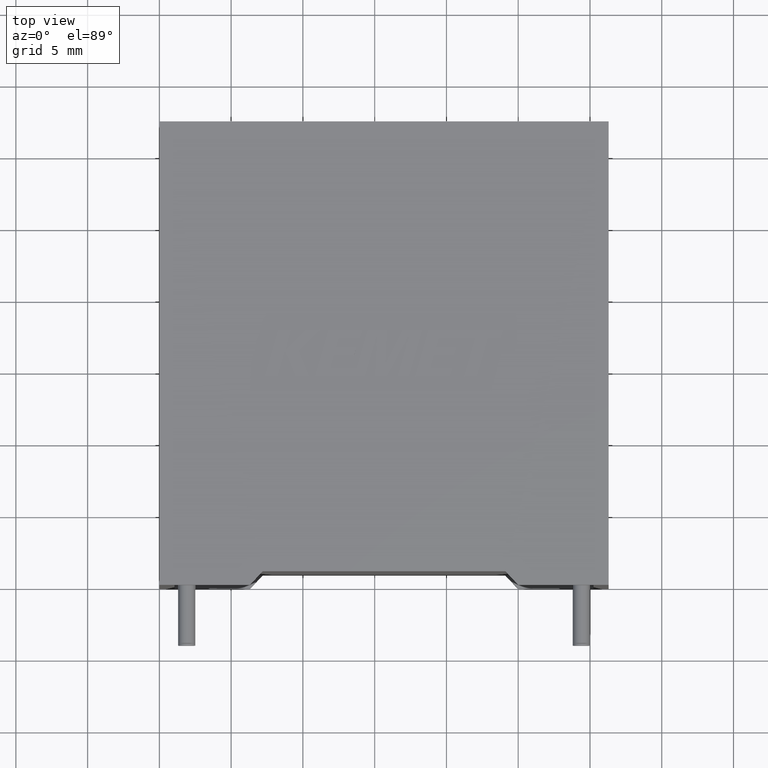
[diagram: clean part render]
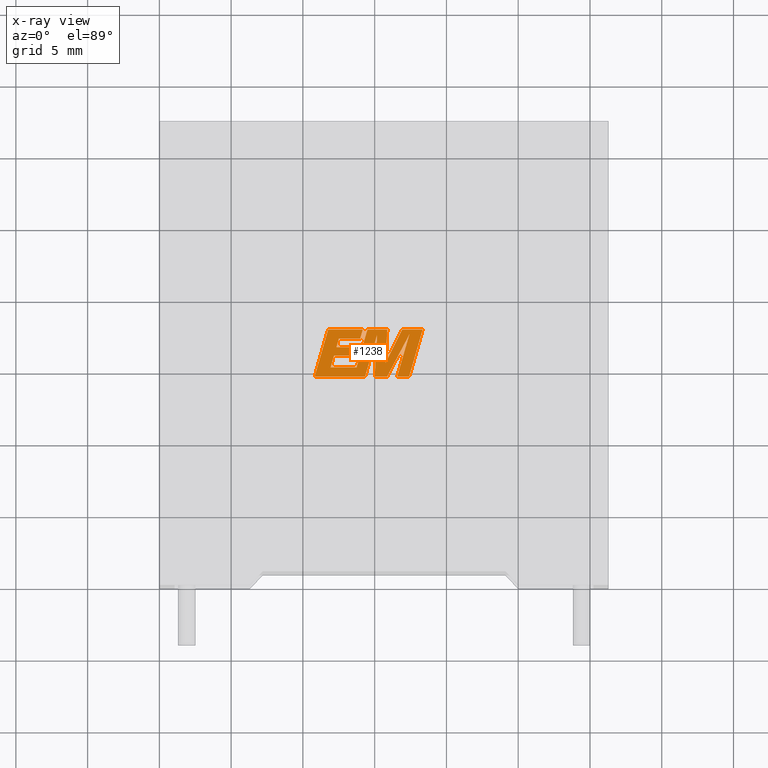
[diagram: x-ray — body ghosted, one internal face saturated and labeled with its STEP entity id]
A machine part, top view, then the same camera in x-ray: the body is ghosted and one INTERNAL B-rep face — a face not visible from any outside direction — is saturated and labeled: STEP entity #1238.
In plain terms, the highlighted planar face has unit normal (0, 0, -1).
Its self-contained STEP definition (entity closure, byte-faithful):
#12 = DIRECTION ( 'NONE',  ( -1.000000000000000000, 0.000000000000000000, 0.000000000000000000 ) ) ;
#141 = CARTESIAN_POINT ( 'NONE',  ( 11.76136659402189011, 17.78428215128295165, 17.30000000000000071 ) ) ;
#147 = LINE ( 'NONE', #3102, #2332 ) ;
#148 = ORIENTED_EDGE ( 'NONE', *, *, #1062, .F. ) ;
#151 = VECTOR ( 'NONE', #1303, 1000.000000000000000 ) ;
#160 = CARTESIAN_POINT ( 'NONE',  ( 14.16898600366057792, 17.78428215128295165, 17.30000000000000071 ) ) ;
#193 = CARTESIAN_POINT ( 'NONE',  ( 11.76136659402189011, 17.78428215128295165, 17.30000000000000071 ) ) ;
#198 = ORIENTED_EDGE ( 'NONE', *, *, #611, .F. ) ;
#209 = EDGE_CURVE ( 'NONE', #1289, #1083, #3087, .T. ) ;
#244 = EDGE_LOOP ( 'NONE', ( #2851, #1325, #1764, #774, #2611, #2180, #1305, #1129, #148, #862, #2558, #1637, #198, #2523, #1270, #343, #1658, #1252, #2404, #495, #1306, #1730, #534 ) ) ;
#304 = CARTESIAN_POINT ( 'NONE',  ( 15.16755047905505371, 17.42668724483645448, 17.30000000000000071 ) ) ;
#330 = DIRECTION ( 'NONE',  ( -0.2760118818968583243, -0.9611542233438683525, 0.000000000000000000 ) ) ;
#343 = ORIENTED_EDGE ( 'NONE', *, *, #460, .F. ) ;
#356 = CARTESIAN_POINT ( 'NONE',  ( 13.55829908329610589, 15.95531307451581249, 17.30000000000000071 ) ) ;
#360 = VECTOR ( 'NONE', #2335, 1000.000000000000227 ) ;
#371 = LINE ( 'NONE', #356, #700 ) ;
#450 = VECTOR ( 'NONE', #3081, 1000.000000000000227 ) ;
#452 = VECTOR ( 'NONE', #1266, 1000.000000000000000 ) ;
#460 = EDGE_CURVE ( 'NONE', #1298, #1931, #371, .T. ) ;
#461 = VECTOR ( 'NONE', #2625, 1000.000000000000227 ) ;
#495 = ORIENTED_EDGE ( 'NONE', *, *, #3139, .F. ) ;
#502 = VECTOR ( 'NONE', #2979, 1000.000000000000000 ) ;
#534 = ORIENTED_EDGE ( 'NONE', *, *, #778, .F. ) ;
#544 = EDGE_CURVE ( 'NONE', #1737, #1140, #856, .T. ) ;
#562 = VECTOR ( 'NONE', #1394, 1000.000000000000000 ) ;
#573 = VECTOR ( 'NONE', #2205, 1000.000000000000000 ) ;
#579 = DIRECTION ( 'NONE',  ( 0.05375259206908569037, 0.9985542843760946141, 0.000000000000000000 ) ) ;
#611 = EDGE_CURVE ( 'NONE', #1083, #2290, #812, .T. ) ;
#615 = CARTESIAN_POINT ( 'NONE',  ( 12.33159406905216038, 16.55778523117215073, 17.30000000000000071 ) ) ;
#620 = DIRECTION ( 'NONE',  ( 0.4668459304955231426, 0.8843386665637600341, 0.000000000000000000 ) ) ;
#639 = EDGE_CURVE ( 'NONE', #1140, #1622, #1274, .T. ) ;
#669 = CARTESIAN_POINT ( 'NONE',  ( 14.49404886040156804, 17.78428215128295165, 17.30000000000000071 ) ) ;
#694 = LINE ( 'NONE', #193, #1224 ) ;
#700 = VECTOR ( 'NONE', #3012, 1000.000000000000114 ) ;
#702 = VERTEX_POINT ( 'NONE', #2142 ) ;
#708 = PLANE ( 'NONE',  #1180 ) ;
#742 = VERTEX_POINT ( 'NONE', #2643 ) ;
#747 = CARTESIAN_POINT ( 'NONE',  ( 13.99279963635794566, 17.16395353602815277, 17.30000000000000071 ) ) ;
#774 = ORIENTED_EDGE ( 'NONE', *, *, #639, .F. ) ;
#778 = EDGE_CURVE ( 'NONE', #1432, #742, #1155, .T. ) ;
#780 = DIRECTION ( 'NONE',  ( 1.000000000000000000, 0.000000000000000000, 0.000000000000000000 ) ) ;
#782 = CARTESIAN_POINT ( 'NONE',  ( 15.00491995823857039, 14.52530999999990513, 17.30000000000000071 ) ) ;
#798 = CARTESIAN_POINT ( 'NONE',  ( 13.73551601201744887, 15.14533142868118887, 17.30000000000000071 ) ) ;
#812 = LINE ( 'NONE', #1018, #2296 ) ;
#815 = DIRECTION ( 'NONE',  ( -0.05596501978068446626, -0.9984327301130244692, 0.000000000000000000 ) ) ;
#823 = EDGE_CURVE ( 'NONE', #1870, #1045, #2200, .T. ) ;
#856 = LINE ( 'NONE', #2793, #2872 ) ;
#862 = ORIENTED_EDGE ( 'NONE', *, *, #1211, .F. ) ;
#935 = VERTEX_POINT ( 'NONE', #669 ) ;
#953 = EDGE_CURVE ( 'NONE', #1931, #1289, #1657, .T. ) ;
#975 = DIRECTION ( 'NONE',  ( 1.000000000000000000, 0.000000000000000000, 0.000000000000000000 ) ) ;
#979 = LINE ( 'NONE', #3136, #573 ) ;
#1018 = CARTESIAN_POINT ( 'NONE',  ( 12.50797862124455584, 17.16395353602815277, 17.30000000000000071 ) ) ;
#1019 = EDGE_CURVE ( 'NONE', #1969, #2052, #1937, .T. ) ;
#1021 = CARTESIAN_POINT ( 'NONE',  ( 13.73551601201744887, 15.14533142868118887, 17.30000000000000071 ) ) ;
#1045 = VERTEX_POINT ( 'NONE', #2223 ) ;
#1050 = EDGE_CURVE ( 'NONE', #1739, #935, #2995, .T. ) ;
#1062 = EDGE_CURVE ( 'NONE', #1063, #1969, #2293, .T. ) ;
#1063 = VERTEX_POINT ( 'NONE', #2732 ) ;
#1083 = VERTEX_POINT ( 'NONE', #2042 ) ;
#1116 = CARTESIAN_POINT ( 'NONE',  ( 13.73038302337338834, 16.55778523117215073, 17.30000000000000071 ) ) ;
#1129 = ORIENTED_EDGE ( 'NONE', *, *, #1019, .F. ) ;
#1140 = VERTEX_POINT ( 'NONE', #2589 ) ;
#1154 = VECTOR ( 'NONE', #1758, 1000.000000000000114 ) ;
#1155 = LINE ( 'NONE', #2128, #450 ) ;
#1175 = VECTOR ( 'NONE', #330, 1000.000000000000000 ) ;
#1180 = AXIS2_PLACEMENT_3D ( 'NONE', #2173, #1652, #2618 ) ;
#1193 = DIRECTION ( 'NONE',  ( -0.2765379750249978286, -0.9610029908221272565, 0.000000000000000000 ) ) ;
#1211 = EDGE_CURVE ( 'NONE', #3082, #1063, #694, .T. ) ;
#1224 = VECTOR ( 'NONE', #1193, 1000.000000000000114 ) ;
#1238 = ADVANCED_FACE ( 'NONE', ( #2410 ), #708, .T. ) ;
#1252 = ORIENTED_EDGE ( 'NONE', *, *, #2159, .F. ) ;
#1266 = DIRECTION ( 'NONE',  ( 1.000000000000000000, 0.000000000000000000, 0.000000000000000000 ) ) ;
#1270 = ORIENTED_EDGE ( 'NONE', *, *, #953, .F. ) ;
#1274 = LINE ( 'NONE', #2248, #1175 ) ;
#1289 = VERTEX_POINT ( 'NONE', #615 ) ;
#1297 = EDGE_CURVE ( 'NONE', #1482, #3082, #1813, .T. ) ;
#1298 = VERTEX_POINT ( 'NONE', #2336 ) ;
#1303 = DIRECTION ( 'NONE',  ( 0.2759782365590843778, 0.9611638845408925214, 0.000000000000000000 ) ) ;
#1305 = ORIENTED_EDGE ( 'NONE', *, *, #1882, .F. ) ;
#1306 = ORIENTED_EDGE ( 'NONE', *, *, #1050, .F. ) ;
#1315 = CARTESIAN_POINT ( 'NONE',  ( 15.16755047905505371, 17.42668724483645448, 17.30000000000000071 ) ) ;
#1325 = ORIENTED_EDGE ( 'NONE', *, *, #1474, .F. ) ;
#1330 = LINE ( 'NONE', #1315, #1458 ) ;
#1336 = CARTESIAN_POINT ( 'NONE',  ( 15.87373278870076554, 14.52530999999990513, 17.30000000000000071 ) ) ;
#1360 = DIRECTION ( 'NONE',  ( 0.2793947940878290792, 0.9601763114327594995, 0.000000000000000000 ) ) ;
#1392 = EDGE_CURVE ( 'NONE', #2290, #1482, #2799, .T. ) ;
#1394 = DIRECTION ( 'NONE',  ( -1.000000000000000000, 0.000000000000000000, 0.000000000000000000 ) ) ;
#1432 = VERTEX_POINT ( 'NONE', #1705 ) ;
#1458 = VECTOR ( 'NONE', #815, 1000.000000000000114 ) ;
#1474 = EDGE_CURVE ( 'NONE', #1582, #702, #1484, .T. ) ;
#1482 = VERTEX_POINT ( 'NONE', #1554 ) ;
#1484 = LINE ( 'NONE', #2264, #1154 ) ;
#1507 = LINE ( 'NONE', #2660, #2470 ) ;
#1554 = CARTESIAN_POINT ( 'NONE',  ( 14.16898600366057792, 17.78428215128295165, 17.30000000000000071 ) ) ;
#1574 = CARTESIAN_POINT ( 'NONE',  ( 14.33448029352148723, 14.52530999999990513, 17.30000000000000071 ) ) ;
#1582 = VERTEX_POINT ( 'NONE', #2341 ) ;
#1622 = VERTEX_POINT ( 'NONE', #1950 ) ;
#1637 = ORIENTED_EDGE ( 'NONE', *, *, #1392, .F. ) ;
#1644 = VECTOR ( 'NONE', #579, 1000.000000000000000 ) ;
#1652 = DIRECTION ( 'NONE',  ( 0.000000000000000000, 0.000000000000000000, -1.000000000000000000 ) ) ;
#1657 = LINE ( 'NONE', #1116, #562 ) ;
#1658 = ORIENTED_EDGE ( 'NONE', *, *, #1661, .F. ) ;
#1659 = LINE ( 'NONE', #1860, #461 ) ;
#1661 = EDGE_CURVE ( 'NONE', #2262, #1298, #2190, .T. ) ;
#1701 = CARTESIAN_POINT ( 'NONE',  ( 14.33448029352148723, 14.52530999999990513, 17.30000000000000071 ) ) ;
#1705 = CARTESIAN_POINT ( 'NONE',  ( 16.91133564329762251, 17.78428215128295165, 17.30000000000000071 ) ) ;
#1730 = ORIENTED_EDGE ( 'NONE', *, *, #3030, .F. ) ;
#1737 = VERTEX_POINT ( 'NONE', #1336 ) ;
#1739 = VERTEX_POINT ( 'NONE', #3022 ) ;
#1758 = DIRECTION ( 'NONE',  ( 0.2763139702539144094, 0.9610674221107065041, 0.000000000000000000 ) ) ;
#1764 = ORIENTED_EDGE ( 'NONE', *, *, #2412, .F. ) ;
#1767 = VECTOR ( 'NONE', #2925, 1000.000000000000000 ) ;
#1769 = CARTESIAN_POINT ( 'NONE',  ( 15.88192980133783294, 17.78428215128295165, 17.30000000000000071 ) ) ;
#1794 = LINE ( 'NONE', #2758, #1644 ) ;
#1813 = LINE ( 'NONE', #160, #2395 ) ;
#1819 = CARTESIAN_POINT ( 'NONE',  ( 13.75439312020063198, 14.52530999999990513, 17.30000000000000071 ) ) ;
#1860 = CARTESIAN_POINT ( 'NONE',  ( 14.49404886040156804, 17.78428215128295165, 17.30000000000000071 ) ) ;
#1870 = VERTEX_POINT ( 'NONE', #1021 ) ;
#1875 = VECTOR ( 'NONE', #975, 1000.000000000000000 ) ;
#1882 = EDGE_CURVE ( 'NONE', #2052, #2903, #1330, .T. ) ;
#1931 = VERTEX_POINT ( 'NONE', #1976 ) ;
#1937 = LINE ( 'NONE', #1701, #151 ) ;
#1950 = CARTESIAN_POINT ( 'NONE',  ( 16.57556494000969494, 14.52530999999990868, 17.30000000000000071 ) ) ;
#1960 = DIRECTION ( 'NONE',  ( -1.000000000000000000, 0.000000000000000000, 0.000000000000000000 ) ) ;
#1969 = VERTEX_POINT ( 'NONE', #1574 ) ;
#1976 = CARTESIAN_POINT ( 'NONE',  ( 13.73038302337338834, 16.55778523117215073, 17.30000000000000071 ) ) ;
#2042 = CARTESIAN_POINT ( 'NONE',  ( 12.50797862124455584, 17.16395353602815277, 17.30000000000000071 ) ) ;
#2052 = VERTEX_POINT ( 'NONE', #304 ) ;
#2098 = DIRECTION ( 'NONE',  ( 0.2740217765954296447, 0.9617234872620531450, 0.000000000000000000 ) ) ;
#2128 = CARTESIAN_POINT ( 'NONE',  ( 16.91133564329762251, 17.78428215128295165, 17.30000000000000071 ) ) ;
#2142 = CARTESIAN_POINT ( 'NONE',  ( 18.34069866367918422, 17.78428215128295165, 17.30000000000000071 ) ) ;
#2159 = EDGE_CURVE ( 'NONE', #1045, #2262, #147, .T. ) ;
#2173 = CARTESIAN_POINT ( 'NONE',  ( -0.1104640680447332712, -1.802930519441395596, 17.30000000000000071 ) ) ;
#2180 = ORIENTED_EDGE ( 'NONE', *, *, #2890, .F. ) ;
#2184 = LINE ( 'NONE', #3148, #1875 ) ;
#2185 = VECTOR ( 'NONE', #1960, 1000.000000000000000 ) ;
#2190 = LINE ( 'NONE', #2679, #1767 ) ;
#2200 = LINE ( 'NONE', #798, #2185 ) ;
#2205 = DIRECTION ( 'NONE',  ( 1.000000000000000000, 0.000000000000000000, 0.000000000000000000 ) ) ;
#2223 = CARTESIAN_POINT ( 'NONE',  ( 11.92892200933862590, 15.14533142868118887, 17.30000000000000071 ) ) ;
#2248 = CARTESIAN_POINT ( 'NONE',  ( 17.41275737125616629, 17.44065927958185114, 17.30000000000000071 ) ) ;
#2262 = VERTEX_POINT ( 'NONE', #2451 ) ;
#2264 = CARTESIAN_POINT ( 'NONE',  ( 17.40372014026792158, 14.52530999999990868, 17.30000000000000071 ) ) ;
#2290 = VERTEX_POINT ( 'NONE', #747 ) ;
#2293 = LINE ( 'NONE', #1819, #452 ) ;
#2296 = VECTOR ( 'NONE', #780, 1000.000000000000000 ) ;
#2332 = VECTOR ( 'NONE', #2098, 1000.000000000000000 ) ;
#2335 = DIRECTION ( 'NONE',  ( 0.2732148821746573919, 0.9619530280415400370, 0.000000000000000000 ) ) ;
#2336 = CARTESIAN_POINT ( 'NONE',  ( 13.55829908329610589, 15.95531307451581249, 17.30000000000000071 ) ) ;
#2341 = CARTESIAN_POINT ( 'NONE',  ( 17.40372014026792158, 14.52530999999990868, 17.30000000000000071 ) ) ;
#2360 = EDGE_CURVE ( 'NONE', #702, #1432, #1507, .T. ) ;
#2362 = VECTOR ( 'NONE', #1360, 1000.000000000000114 ) ;
#2366 = CARTESIAN_POINT ( 'NONE',  ( 13.99279963635794566, 17.16395353602815277, 17.30000000000000071 ) ) ;
#2373 = CARTESIAN_POINT ( 'NONE',  ( 12.33159406905216038, 16.55778523117215073, 17.30000000000000071 ) ) ;
#2395 = VECTOR ( 'NONE', #2775, 1000.000000000000000 ) ;
#2404 = ORIENTED_EDGE ( 'NONE', *, *, #823, .F. ) ;
#2410 = FACE_OUTER_BOUND ( 'NONE', #244, .T. ) ;
#2412 = EDGE_CURVE ( 'NONE', #1622, #1582, #2184, .T. ) ;
#2451 = CARTESIAN_POINT ( 'NONE',  ( 12.15970831386486140, 15.95531307451581249, 17.30000000000000071 ) ) ;
#2470 = VECTOR ( 'NONE', #12, 1000.000000000000000 ) ;
#2523 = ORIENTED_EDGE ( 'NONE', *, *, #209, .F. ) ;
#2558 = ORIENTED_EDGE ( 'NONE', *, *, #1297, .F. ) ;
#2589 = CARTESIAN_POINT ( 'NONE',  ( 17.41275737125616629, 17.44065927958185114, 17.30000000000000071 ) ) ;
#2611 = ORIENTED_EDGE ( 'NONE', *, *, #544, .F. ) ;
#2618 = DIRECTION ( 'NONE',  ( -1.000000000000000000, 0.000000000000000000, 0.000000000000000000 ) ) ;
#2625 = DIRECTION ( 'NONE',  ( -0.2762517575166409944, -0.9610853065513834670, 0.000000000000000000 ) ) ;
#2643 = CARTESIAN_POINT ( 'NONE',  ( 15.75659905143329809, 15.45603057375168987, 17.30000000000000071 ) ) ;
#2660 = CARTESIAN_POINT ( 'NONE',  ( 18.34069866367918422, 17.78428215128295165, 17.30000000000000071 ) ) ;
#2679 = CARTESIAN_POINT ( 'NONE',  ( 12.15970831386486140, 15.95531307451581249, 17.30000000000000071 ) ) ;
#2732 = CARTESIAN_POINT ( 'NONE',  ( 10.82356560069960416, 14.52530999999990513, 17.30000000000000071 ) ) ;
#2758 = CARTESIAN_POINT ( 'NONE',  ( 15.75659905143329809, 15.45603057375168987, 17.30000000000000071 ) ) ;
#2775 = DIRECTION ( 'NONE',  ( -1.000000000000000000, 0.000000000000000000, 0.000000000000000000 ) ) ;
#2793 = CARTESIAN_POINT ( 'NONE',  ( 15.87373278870076554, 14.52530999999990513, 17.30000000000000071 ) ) ;
#2799 = LINE ( 'NONE', #2366, #360 ) ;
#2851 = ORIENTED_EDGE ( 'NONE', *, *, #2360, .F. ) ;
#2872 = VECTOR ( 'NONE', #620, 1000.000000000000000 ) ;
#2890 = EDGE_CURVE ( 'NONE', #2903, #1737, #979, .T. ) ;
#2903 = VERTEX_POINT ( 'NONE', #782 ) ;
#2925 = DIRECTION ( 'NONE',  ( 1.000000000000000000, 0.000000000000000000, 0.000000000000000000 ) ) ;
#2979 = DIRECTION ( 'NONE',  ( -1.000000000000000000, 0.000000000000000000, 0.000000000000000000 ) ) ;
#2995 = LINE ( 'NONE', #1769, #502 ) ;
#3012 = DIRECTION ( 'NONE',  ( 0.2746459304916870625, 0.9615454294334487839, 0.000000000000000000 ) ) ;
#3022 = CARTESIAN_POINT ( 'NONE',  ( 15.88192980133783294, 17.78428215128295165, 17.30000000000000071 ) ) ;
#3030 = EDGE_CURVE ( 'NONE', #742, #1739, #1794, .T. ) ;
#3081 = DIRECTION ( 'NONE',  ( -0.4443210308329524905, -0.8958676361826798384, 0.000000000000000000 ) ) ;
#3082 = VERTEX_POINT ( 'NONE', #141 ) ;
#3087 = LINE ( 'NONE', #2373, #2362 ) ;
#3102 = CARTESIAN_POINT ( 'NONE',  ( 11.92892200933862590, 15.14533142868118887, 17.30000000000000071 ) ) ;
#3136 = CARTESIAN_POINT ( 'NONE',  ( 15.00491995823857039, 14.52530999999990513, 17.30000000000000071 ) ) ;
#3139 = EDGE_CURVE ( 'NONE', #935, #1870, #1659, .T. ) ;
#3148 = CARTESIAN_POINT ( 'NONE',  ( 16.57556494000969494, 14.52530999999990868, 17.30000000000000071 ) ) ;